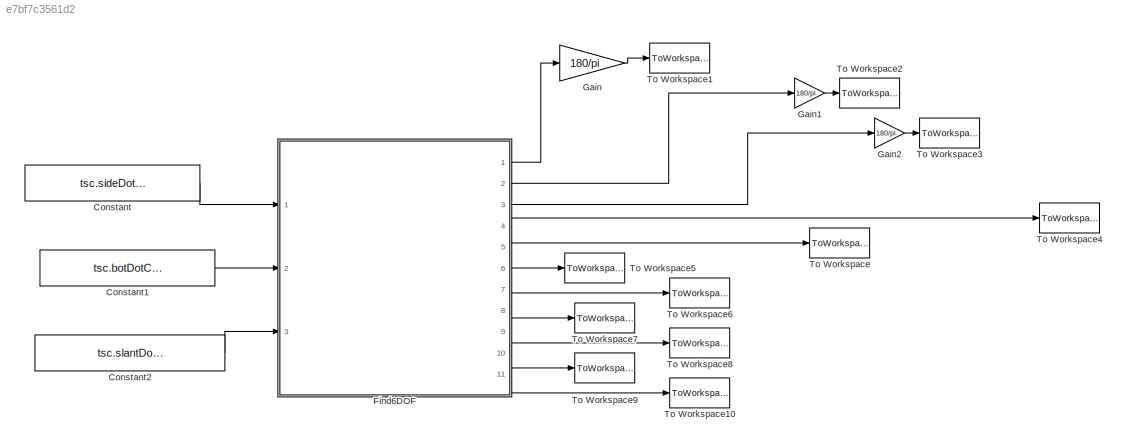
MODEL slx_e7bf7c3561d2
KIND model
CONFIG AbsTol = auto
CONFIG EnableMultiTasking = off
CONFIG FixedStep = 0.01
CONFIG MaxStep = auto
CONFIG MinStep = auto
CONFIG RelTol = 1e-3
CONFIG SampleTimeConstraint = Unconstrained
CONFIG Solver = ode8
CONFIG SolverName = ode8
CONFIG StartTime = 0.0
CONFIG StopTime = 5
BLOCK [Constant] Constant
  Value = tsc.sideDotCoords.Data(:,:,end)
BLOCK [Constant] Constant1
  Value = tsc.botDotCoords.Data(:,:,end)
BLOCK [Constant] Constant2
  Value = tsc.slantDotCoords.Data(:,:,end)
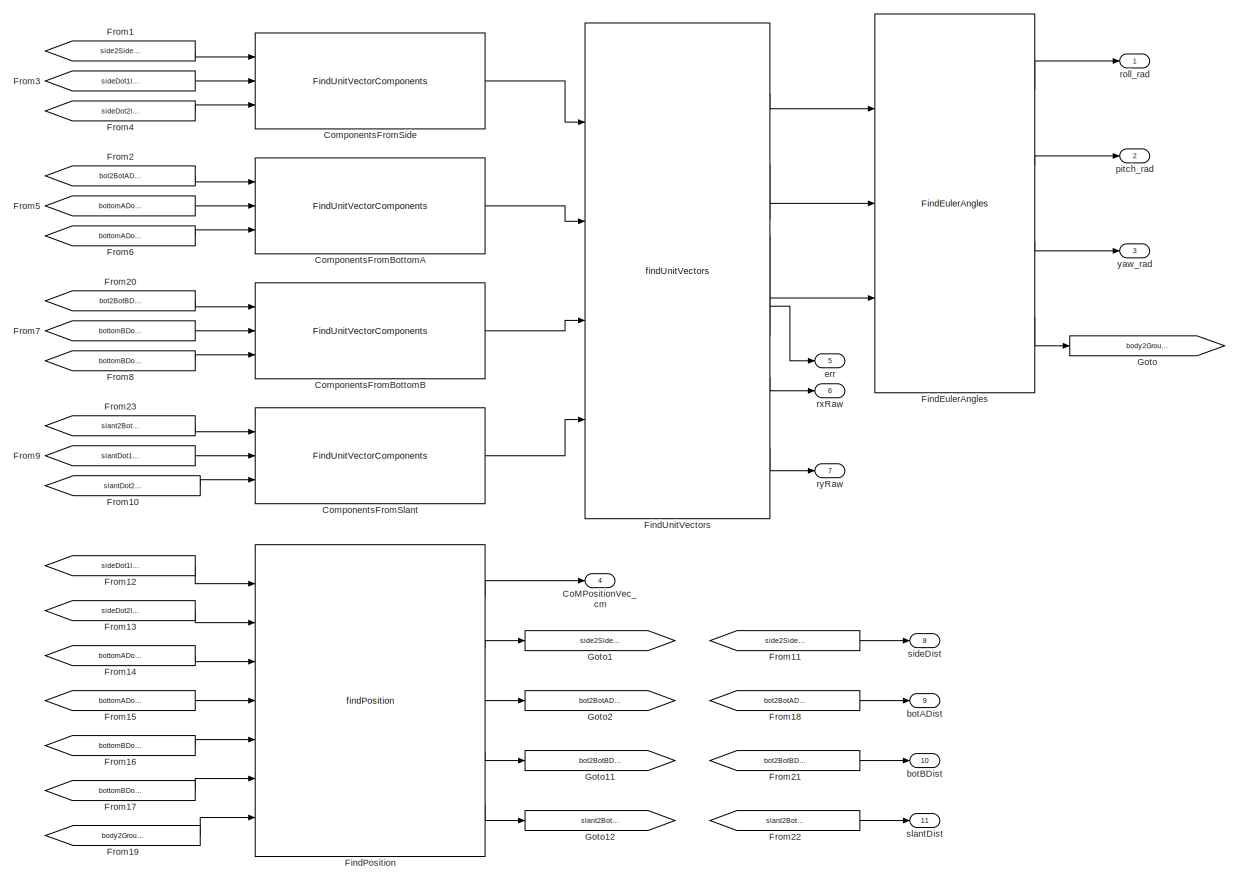
[diagram: Find6DOF - part 1/2, center side, full height]
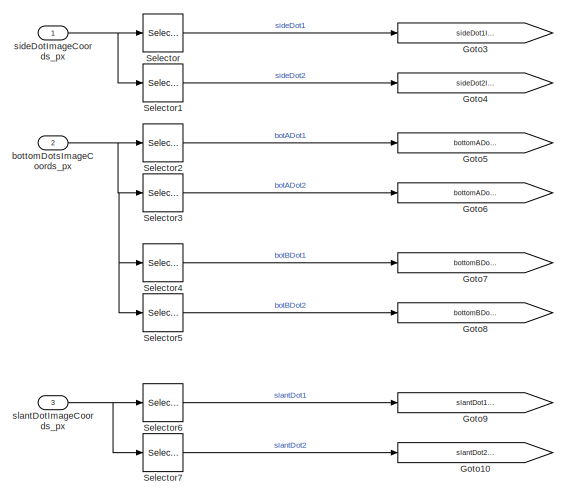
[diagram: Find6DOF - part 2/2, middle left region]
BLOCK [SubSystem] Find6DOF
  AncestorBlock = find6DOF_cl/Find6DOF
  Ports = [3, 11]
  RequestExecContextInheritance = off
BLOCK [Outport] Find6DOF/CoMPositionVec_cm
  IconDisplay = Port number
  Port = 4
  Unit = cm
BLOCK [Reference] Find6DOF/ComponentsFromBottomA  REF=FindUnitVectorComponents_ul/FindUnitVectorComponents
  Ports = [3, 1]
  SourceBlock = FindUnitVectorComponents_ul/FindUnitVectorComponents
BLOCK [Reference] Find6DOF/ComponentsFromBottomB  REF=FindUnitVectorComponents_ul/FindUnitVectorComponents
  Ports = [3, 1]
  SourceBlock = FindUnitVectorComponents_ul/FindUnitVectorComponents
BLOCK [Reference] Find6DOF/ComponentsFromSide  REF=FindUnitVectorComponents_ul/FindUnitVectorComponents
  Ports = [3, 1]
  SourceBlock = FindUnitVectorComponents_ul/FindUnitVectorComponents
BLOCK [Reference] Find6DOF/ComponentsFromSlant  REF=FindUnitVectorComponents_ul/FindUnitVectorComponents
  Ports = [3, 1]
  SourceBlock = FindUnitVectorComponents_ul/FindUnitVectorComponents
BLOCK [Reference] Find6DOF/FindEulerAngles  REF=findEulerAngles_ul/FindEulerAngles
  Ports = [3, 4]
  SourceBlock = findEulerAngles_ul/FindEulerAngles
  SourceType = SubSystem
BLOCK [Reference] Find6DOF/FindPosition  REF=findPosition_ul/findPosition
  Ports = [7, 5]
  SourceBlock = findPosition_ul/findPosition
BLOCK [Reference] Find6DOF/FindUnitVectors  REF=findUnitVectors_ul/findUnitVectors
  Ports = [4, 6]
  SourceBlock = findUnitVectors_ul/findUnitVectors
BLOCK [From] Find6DOF/From1
  GotoTag = side2SideDist_cm
BLOCK [From] Find6DOF/From10
  GotoTag = slantDot2ImageCoords_px
BLOCK [From] Find6DOF/From11
  GotoTag = side2SideDist_cm
BLOCK [From] Find6DOF/From12
  GotoTag = sideDot1ImageCoords_px
BLOCK [From] Find6DOF/From13
  GotoTag = sideDot2ImageCoords_px
BLOCK [From] Find6DOF/From14
  GotoTag = bottomADot1ImageCoords_px
BLOCK [From] Find6DOF/From15
  GotoTag = bottomADot2ImageCoords_px
BLOCK [From] Find6DOF/From16
  GotoTag = bottomBDot1ImageCoords_px
BLOCK [From] Find6DOF/From17
  GotoTag = bottomBDot2ImageCoords_px
BLOCK [From] Find6DOF/From18
  GotoTag = bot2BotADist_cm
BLOCK [From] Find6DOF/From19
  GotoTag = body2GroundRotationMatrix
BLOCK [From] Find6DOF/From2
  GotoTag = bot2BotADist_cm
BLOCK [From] Find6DOF/From20
  GotoTag = bot2BotBDist_cm
BLOCK [From] Find6DOF/From21
  GotoTag = bot2BotBDist_cm
BLOCK [From] Find6DOF/From22
  GotoTag = slant2BotBDist_cm
BLOCK [From] Find6DOF/From23
  GotoTag = slant2BotBDist_cm
BLOCK [From] Find6DOF/From3
  GotoTag = sideDot1ImageCoords_px
BLOCK [From] Find6DOF/From4
  GotoTag = sideDot2ImageCoords_px
BLOCK [From] Find6DOF/From5
  GotoTag = bottomADot1ImageCoords_px
BLOCK [From] Find6DOF/From6
  GotoTag = bottomADot2ImageCoords_px
BLOCK [From] Find6DOF/From7
  GotoTag = bottomBDot1ImageCoords_px
BLOCK [From] Find6DOF/From8
  GotoTag = bottomBDot2ImageCoords_px
BLOCK [From] Find6DOF/From9
  GotoTag = slantDot1ImageCoords_px
BLOCK [Goto] Find6DOF/Goto
  GotoTag = body2GroundRotationMatrix
BLOCK [Goto] Find6DOF/Goto1
  GotoTag = side2SideDist_cm
BLOCK [Goto] Find6DOF/Goto10
  GotoTag = slantDot2ImageCoords_px
BLOCK [Goto] Find6DOF/Goto11
  GotoTag = bot2BotBDist_cm
BLOCK [Goto] Find6DOF/Goto12
  GotoTag = slant2BotBDist_cm
BLOCK [Goto] Find6DOF/Goto2
  GotoTag = bot2BotADist_cm
BLOCK [Goto] Find6DOF/Goto3
  GotoTag = sideDot1ImageCoords_px
BLOCK [Goto] Find6DOF/Goto4
  GotoTag = sideDot2ImageCoords_px
BLOCK [Goto] Find6DOF/Goto5
  GotoTag = bottomADot1ImageCoords_px
BLOCK [Goto] Find6DOF/Goto6
  GotoTag = bottomADot2ImageCoords_px
BLOCK [Goto] Find6DOF/Goto7
  GotoTag = bottomBDot1ImageCoords_px
BLOCK [Goto] Find6DOF/Goto8
  GotoTag = bottomBDot2ImageCoords_px
BLOCK [Goto] Find6DOF/Goto9
  GotoTag = slantDot1ImageCoords_px
BLOCK [Selector] Find6DOF/Selector
  IndexOptions = Index vector (dialog)
  Indices = [1 2]
  InputPortWidth = 4
  OutputSizes = 1
  Ports = [1, 1]
BLOCK [Selector] Find6DOF/Selector1
  IndexOptions = Index vector (dialog)
  Indices = [3 4]
  InputPortWidth = 4
  OutputSizes = 1
  Ports = [1, 1]
BLOCK [Selector] Find6DOF/Selector2
  IndexOptions = Index vector (dialog)
  Indices = [1 2]
  InputPortWidth = 8
  OutputSizes = 1
  Ports = [1, 1]
BLOCK [Selector] Find6DOF/Selector3
  IndexOptions = Index vector (dialog)
  Indices = [3 4]
  InputPortWidth = 8
  OutputSizes = 1
  Ports = [1, 1]
BLOCK [Selector] Find6DOF/Selector4
  IndexOptions = Index vector (dialog)
  Indices = [5 6]
  InputPortWidth = 8
  OutputSizes = 1
  Ports = [1, 1]
BLOCK [Selector] Find6DOF/Selector5
  IndexOptions = Index vector (dialog)
  Indices = [7 8]
  InputPortWidth = 8
  OutputSizes = 1
  Ports = [1, 1]
BLOCK [Selector] Find6DOF/Selector6
  IndexOptions = Index vector (dialog)
  Indices = [1 2]
  InputPortWidth = 4
  OutputSizes = 1
  Ports = [1, 1]
BLOCK [Selector] Find6DOF/Selector7
  IndexOptions = Index vector (dialog)
  Indices = [3 4]
  InputPortWidth = 4
  OutputSizes = 1
  Ports = [1, 1]
BLOCK [Outport] Find6DOF/botADist
  IconDisplay = Port number
  Port = 9
BLOCK [Outport] Find6DOF/botBDist
  IconDisplay = Port number
  Port = 10
BLOCK [Inport] Find6DOF/bottomDotsImageCoords_px
  IconDisplay = Port number
  Port = 2
BLOCK [Outport] Find6DOF/err
  IconDisplay = Port number
  Port = 5
BLOCK [Outport] Find6DOF/pitch_rad
  IconDisplay = Port number
  Port = 2
  Unit = rad
BLOCK [Outport] Find6DOF/roll_rad
  IconDisplay = Port number
  Unit = rad
BLOCK [Outport] Find6DOF/rxRaw
  IconDisplay = Port number
  Port = 6
BLOCK [Outport] Find6DOF/ryRaw
  IconDisplay = Port number
  Port = 7
BLOCK [Outport] Find6DOF/sideDist
  IconDisplay = Port number
  Port = 8
BLOCK [Inport] Find6DOF/sideDotImageCoords_px
  IconDisplay = Port number
BLOCK [Outport] Find6DOF/slantDist
  IconDisplay = Port number
  Port = 11
BLOCK [Inport] Find6DOF/slantDotImageCoords_px
  IconDisplay = Port number
  Port = 3
BLOCK [Outport] Find6DOF/yaw_rad
  IconDisplay = Port number
  Port = 3
  Unit = rad
BLOCK [Gain] Gain
  Gain = 180/pi
  OutDataTypeStr = Inherit: Inherit via internal rule
  ParamDataTypeStr = Inherit: Inherit via internal rule
  SaturateOnIntegerOverflow = off
BLOCK [Gain] Gain1
  Gain = 180/pi
  OutDataTypeStr = Inherit: Inherit via internal rule
  ParamDataTypeStr = Inherit: Inherit via internal rule
  SaturateOnIntegerOverflow = off
BLOCK [Gain] Gain2
  Gain = 180/pi
  OutDataTypeStr = Inherit: Inherit via internal rule
  ParamDataTypeStr = Inherit: Inherit via internal rule
  SaturateOnIntegerOverflow = off
BLOCK [ToWorkspace] To Workspace
  FixptAsFi = on
  MaxDataPoints = inf
  Ports = [1]
  SampleTime = -1
  Save2DSignal = 3-D array (concatenate along third dimension)
  SaveFormat = Timeseries
  VariableName = err
BLOCK [ToWorkspace] To Workspace1
  FixptAsFi = on
  MaxDataPoints = inf
  Ports = [1]
  SampleTime = -1
  Save2DSignal = 3-D array (concatenate along third dimension)
  SaveFormat = Timeseries
  VariableName = roll_deg
BLOCK [ToWorkspace] To Workspace10
  FixptAsFi = on
  MaxDataPoints = inf
  Ports = [1]
  SampleTime = -1
  Save2DSignal = 3-D array (concatenate along third dimension)
  SaveFormat = Timeseries
  VariableName = slantDist
BLOCK [ToWorkspace] To Workspace2
  FixptAsFi = on
  MaxDataPoints = inf
  Ports = [1]
  SampleTime = -1
  Save2DSignal = 3-D array (concatenate along third dimension)
  SaveFormat = Timeseries
  VariableName = pitch_deg
BLOCK [ToWorkspace] To Workspace3
  FixptAsFi = on
  MaxDataPoints = inf
  Ports = [1]
  SampleTime = -1
  Save2DSignal = 3-D array (concatenate along third dimension)
  SaveFormat = Timeseries
  VariableName = yaw_deg
BLOCK [ToWorkspace] To Workspace4
  FixptAsFi = on
  MaxDataPoints = inf
  Ports = [1]
  SampleTime = -1
  Save2DSignal = 3-D array (concatenate along third dimension)
  SaveFormat = Timeseries
  VariableName = CoMPosVec_cm
BLOCK [ToWorkspace] To Workspace5
  FixptAsFi = on
  MaxDataPoints = inf
  Ports = [1]
  SampleTime = -1
  Save2DSignal = 3-D array (concatenate along third dimension)
  SaveFormat = Timeseries
  VariableName = rxRaw
BLOCK [ToWorkspace] To Workspace6
  FixptAsFi = on
  MaxDataPoints = inf
  Ports = [1]
  SampleTime = -1
  Save2DSignal = 3-D array (concatenate along third dimension)
  SaveFormat = Timeseries
  VariableName = ryRaw
BLOCK [ToWorkspace] To Workspace7
  FixptAsFi = on
  MaxDataPoints = inf
  Ports = [1]
  SampleTime = -1
  Save2DSignal = 3-D array (concatenate along third dimension)
  SaveFormat = Timeseries
  VariableName = sideDist
BLOCK [ToWorkspace] To Workspace8
  FixptAsFi = on
  MaxDataPoints = inf
  Ports = [1]
  SampleTime = -1
  Save2DSignal = 3-D array (concatenate along third dimension)
  SaveFormat = Timeseries
  VariableName = botADist
BLOCK [ToWorkspace] To Workspace9
  FixptAsFi = on
  MaxDataPoints = inf
  Ports = [1]
  SampleTime = -1
  Save2DSignal = 3-D array (concatenate along third dimension)
  SaveFormat = Timeseries
  VariableName = botBDist
LINE Constant1:1 -> Find6DOF:2
LINE Constant2:1 -> Find6DOF:3
LINE Constant:1 -> Find6DOF:1
LINE Find6DOF:1 -> Gain:1
LINE Find6DOF:10 -> To Workspace9:1
LINE Find6DOF:11 -> To Workspace10:1
LINE Find6DOF:2 -> Gain1:1
LINE Find6DOF:3 -> Gain2:1
LINE Find6DOF:4 -> To Workspace4:1
LINE Find6DOF:5 -> To Workspace:1
LINE Find6DOF:6 -> To Workspace5:1
LINE Find6DOF:7 -> To Workspace6:1
LINE Find6DOF:8 -> To Workspace7:1
LINE Find6DOF:9 -> To Workspace8:1
LINE Gain1:1 -> To Workspace2:1
LINE Gain2:1 -> To Workspace3:1
LINE Gain:1 -> To Workspace1:1
